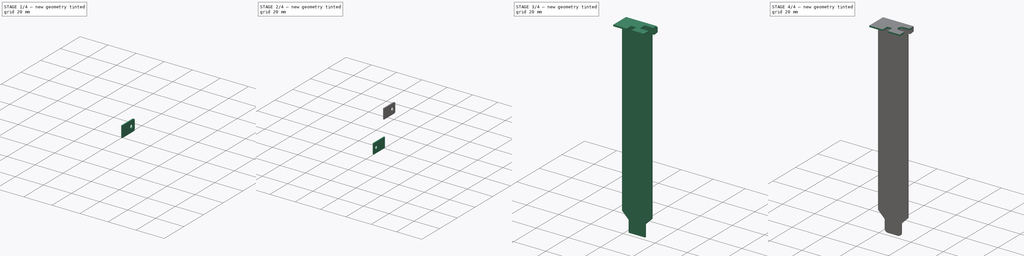
[diagram: build sequence overview — one tinted view per stage of 4, left to right]
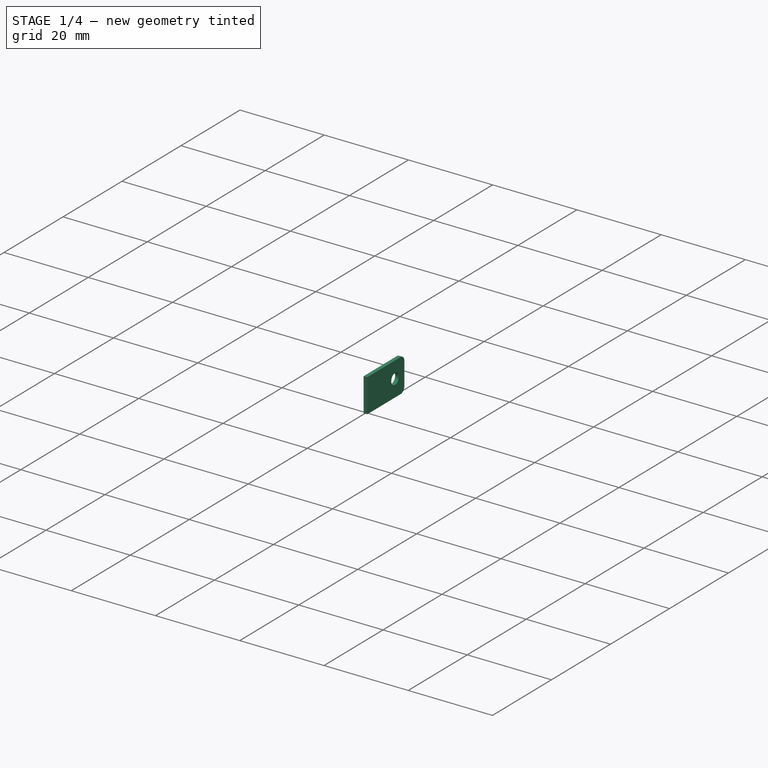
[diagram: stage 1 of 4 — iso view after this stage's code; geometry added in this stage tinted green]
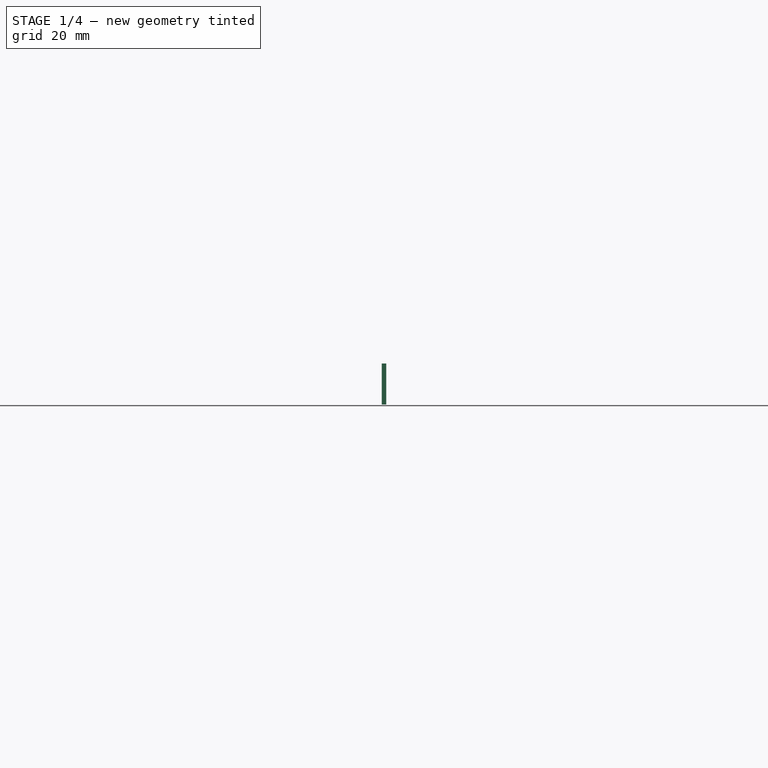
[diagram: stage 1 of 4 — front view after this stage's code; geometry added in this stage tinted green]
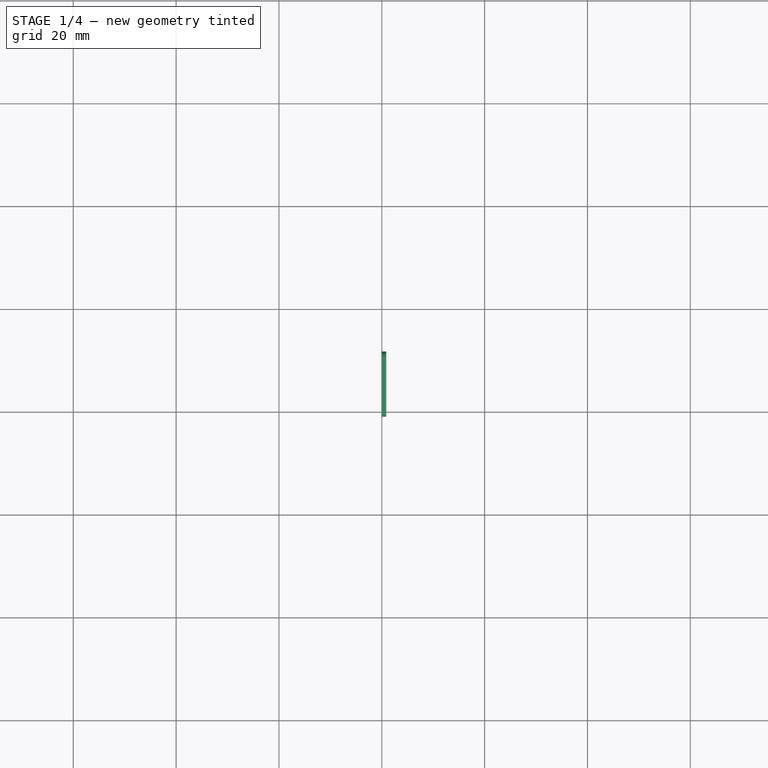
[diagram: stage 1 of 4 — top view after this stage's code; geometry added in this stage tinted green]
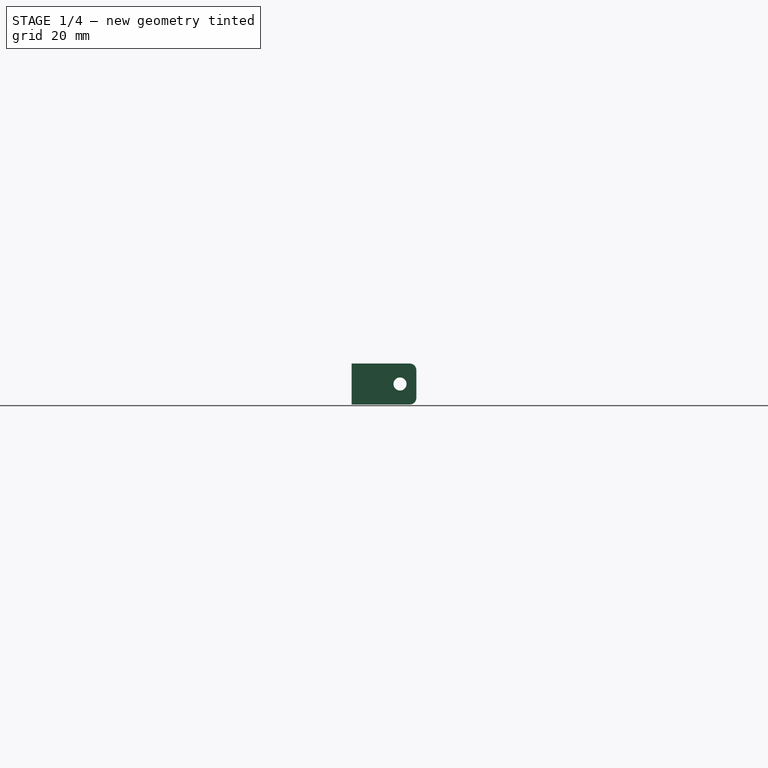
[diagram: stage 1 of 4 — right view after this stage's code; geometry added in this stage tinted green]
FCSTD DOCUMENT  (FreeCAD 1.0R1.0.1)
Label: IOBracket_Standard
License: All rights reserved
LicenseURL: http://en.wikipedia.org/wiki/All_rights_reserved
objects: Part::Fillet×4, Sketcher::SketchObject×2, PartDesign::Pad×2, PartDesign::Body×2, Part::MultiFuse×2, Part::Box×2, Part::Cylinder×2, Part::Cut×2
note: 24 computed .brp shape members not serialized (recipe doc carries the construction recipe); baked Part::Feature solids carry a one-line shape summary decoded from their .brp

FEATURE [Part::Box] Box001  label="Cube001"
  AttacherType = Attacher::AttachEngine3D
  Height = 7.95
  Length = 0.86
  Placement = pos=(0,-12.57,0) rot=(0,0,1;0rad)
  Width = 12.57
FEATURE [Part::Cylinder] Cylinder001
  Angle = 360
  AttacherType = Attacher::AttachEngine3D
  FirstAngle = 0
  Height = 10
  Placement = pos=(0,-9.4,3.975) rot=(0,1,0;1.5708rad)
  Radius = 1.27
  SecondAngle = 0
FEATURE [Part::Cut] Cut001
  Base = -> Box001
  Tool = -> Cylinder001
FEATURE [Part::Fillet] Fillet003
  Base = -> Cut001
  EdgeLinks = -> Cut001 [Edge6,Edge8]
  Edges = 2 edges r=1.27: [Edge6,Edge8]
  Placement = pos=(0.86,-0.86,20.53) rot=(0,0,1;3.14159rad)
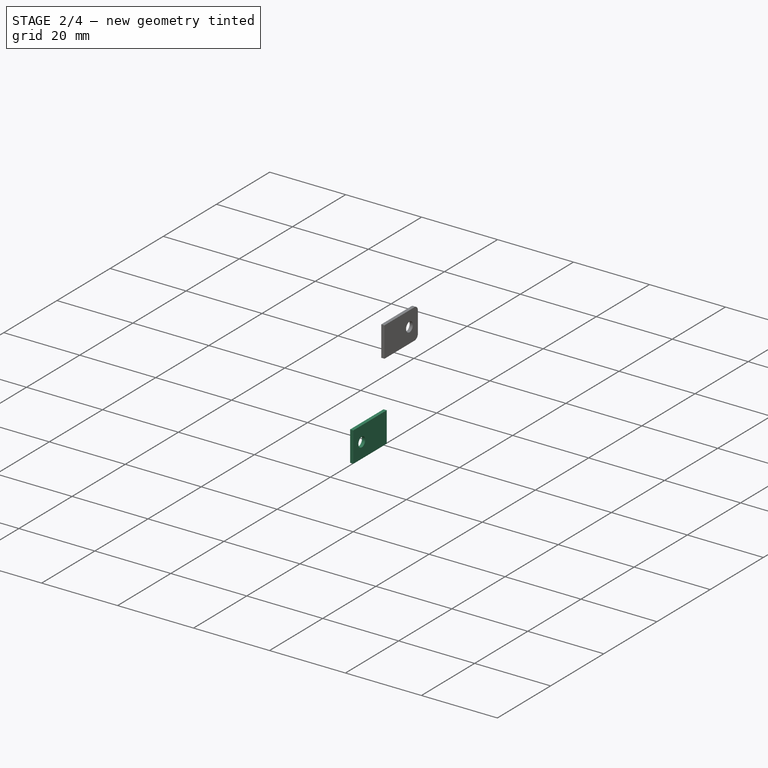
[diagram: stage 2 of 4 — iso view after this stage's code; geometry added in this stage tinted green]
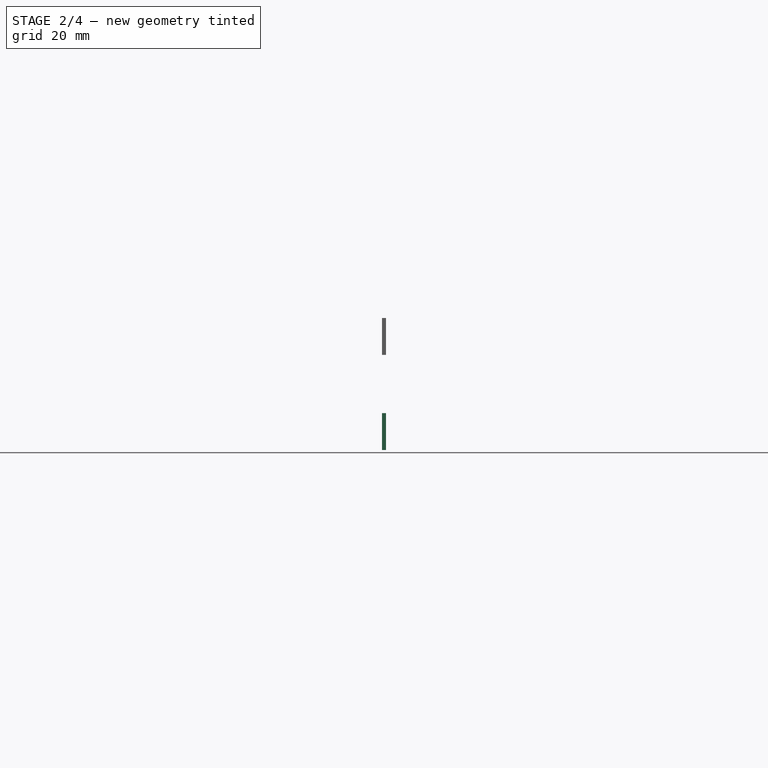
[diagram: stage 2 of 4 — front view after this stage's code; geometry added in this stage tinted green]
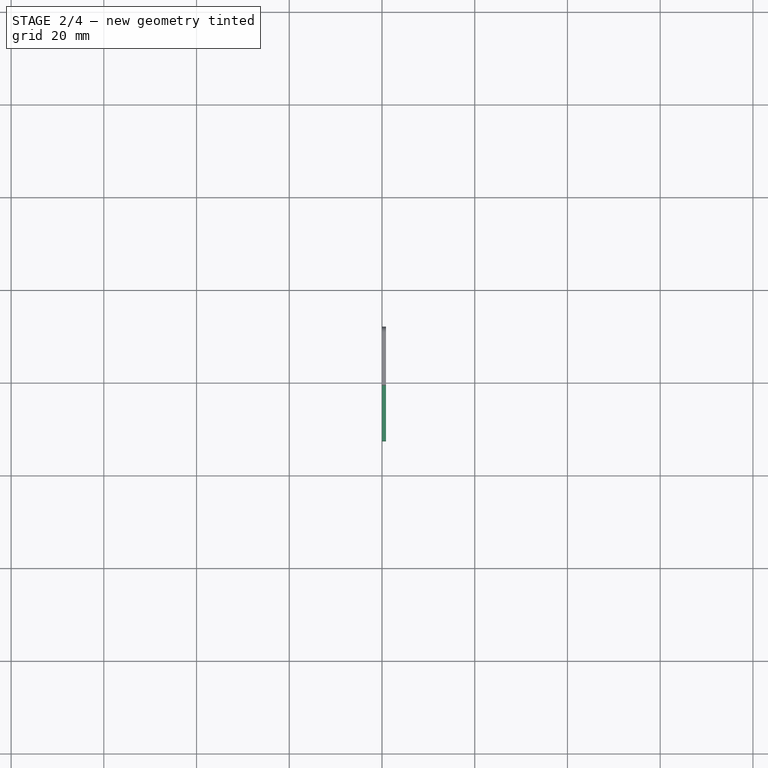
[diagram: stage 2 of 4 — top view after this stage's code; geometry added in this stage tinted green]
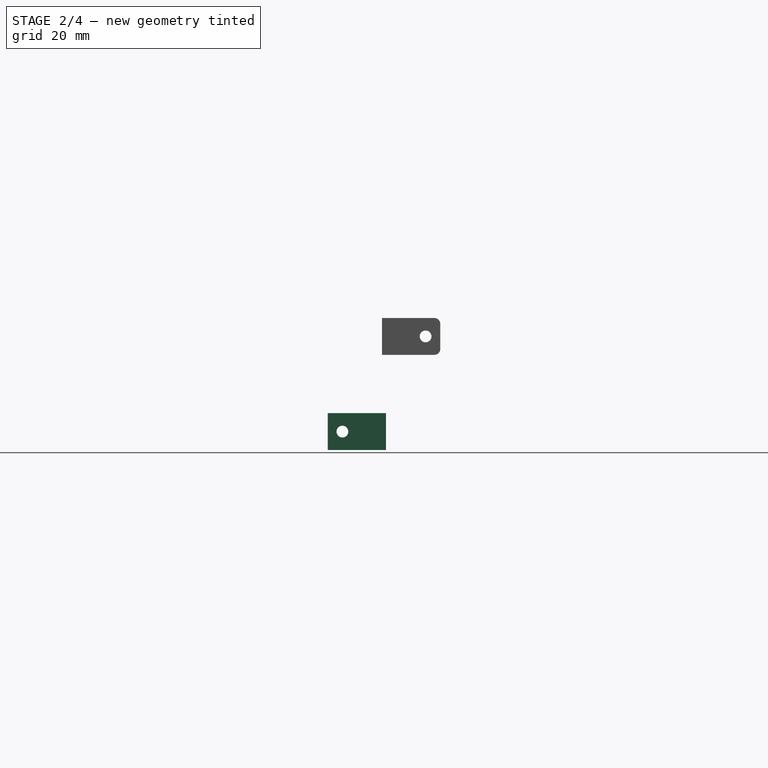
[diagram: stage 2 of 4 — right view after this stage's code; geometry added in this stage tinted green]
FEATURE [Part::Box] Box  label="Cube"
  AttacherType = Attacher::AttachEngine3D
  Height = 7.95
  Length = 0.86
  Placement = pos=(0,-12.57,0) rot=(0,0,1;0rad)
  Width = 12.57
FEATURE [Part::Cylinder] Cylinder
  Angle = 360
  AttacherType = Attacher::AttachEngine3D
  FirstAngle = 0
  Height = 10
  Placement = pos=(0,-9.4,3.975) rot=(0,1,0;1.5708rad)
  Radius = 1.27
  SecondAngle = 0
FEATURE [Part::Cut] Cut
  Base = -> Box
  Tool = -> Cylinder
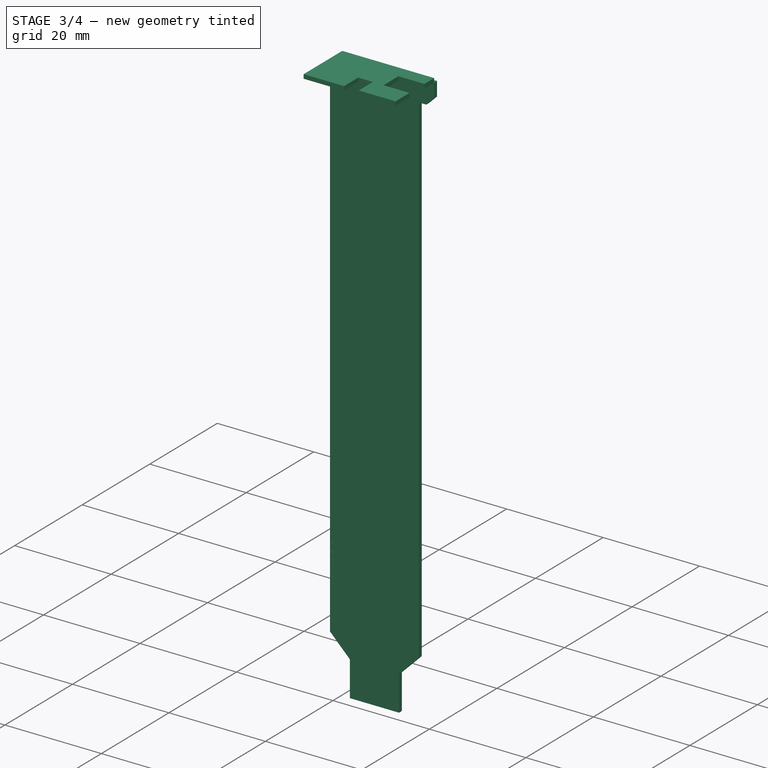
[diagram: stage 3 of 4 — iso view after this stage's code; geometry added in this stage tinted green]
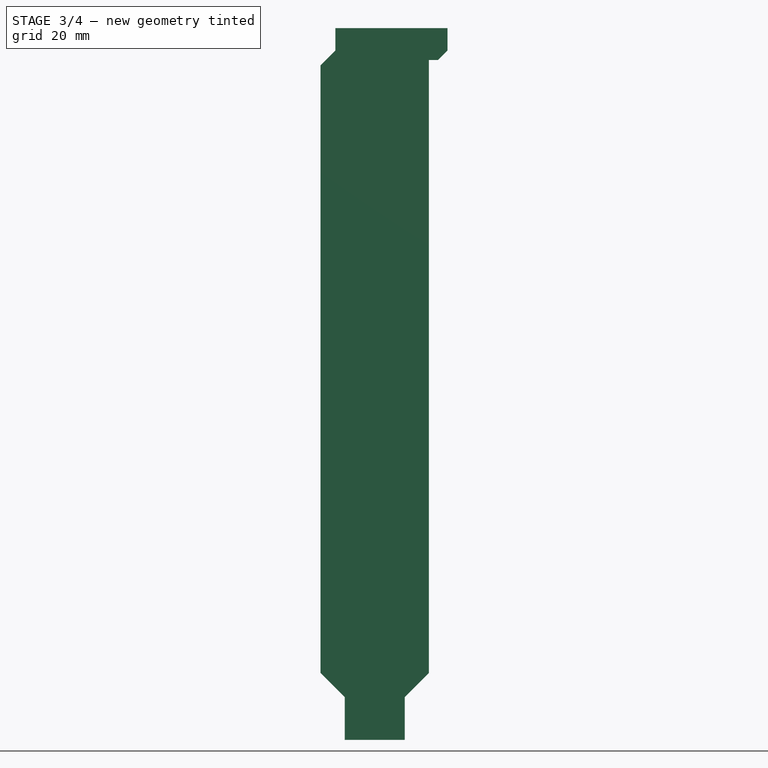
[diagram: stage 3 of 4 — front view after this stage's code; geometry added in this stage tinted green]
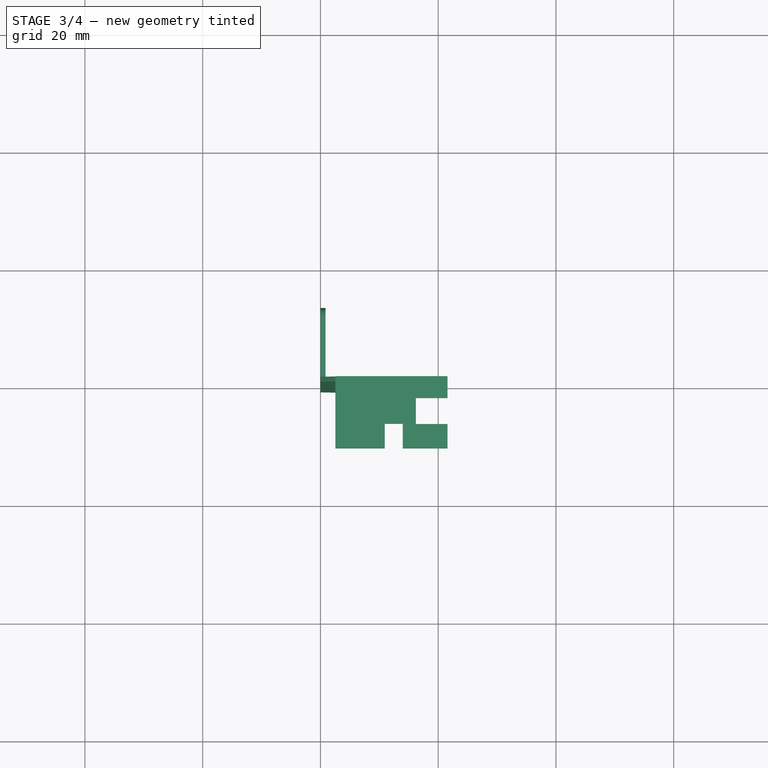
[diagram: stage 3 of 4 — top view after this stage's code; geometry added in this stage tinted green]
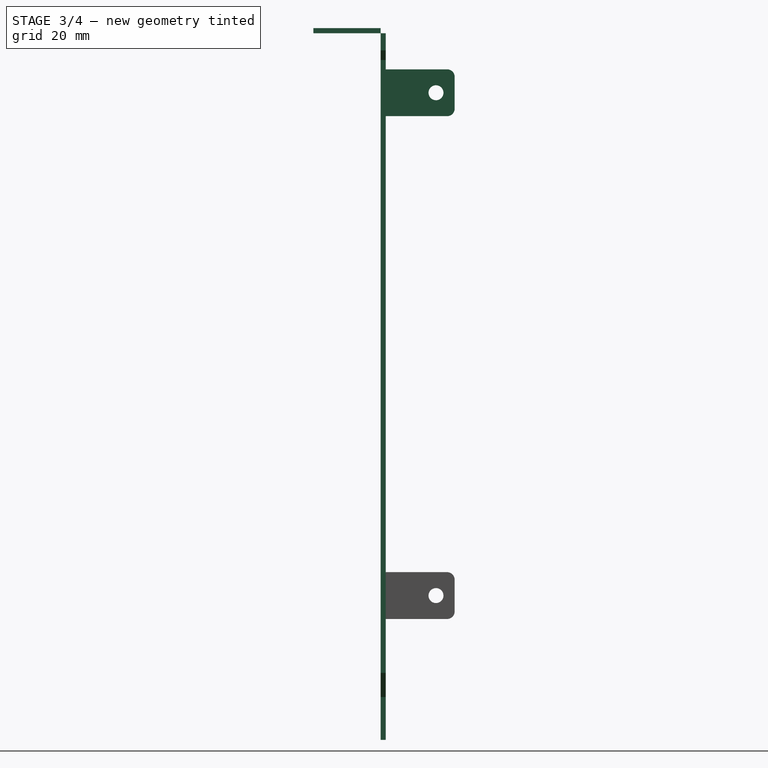
[diagram: stage 3 of 4 — right view after this stage's code; geometry added in this stage tinted green]
FEATURE [Sketcher::SketchObject] Sketch
  ArcFitTolerance = 1e-06
  AttachmentSupport = -> [XZ_Plane]
  FullyConstrained = true
  MakeInternals = false
  MapMode = 5
  Placement = pos=(0,0,0) rot=(1,0,0;1.5708rad)
  sketch-geometry (13):
    g0: LineSegment StartX=0 StartY=11.39 StartZ=0 EndX=4.12 EndY=7.27 EndZ=0
    g1: LineSegment StartX=4.12 StartY=7.27 StartZ=0 EndX=4.12 EndY=0 EndZ=0
    g2: LineSegment StartX=4.12 StartY=0 StartZ=0 EndX=14.31 EndY=0 EndZ=0
    g3: LineSegment StartX=14.31 StartY=0 StartZ=0 EndX=14.31 EndY=7.27 EndZ=0
    g4: LineSegment StartX=14.31 StartY=7.27 StartZ=0 EndX=18.42 EndY=11.38 EndZ=0
    g5: LineSegment StartX=18.42 StartY=11.38 StartZ=0 EndX=18.42 EndY=115.46 EndZ=0
    g6: LineSegment StartX=18.42 StartY=115.46 StartZ=0 EndX=19.95 EndY=115.46 EndZ=0
    g7: LineSegment StartX=19.95 StartY=115.46 StartZ=0 EndX=21.59 EndY=117.1 EndZ=0
    g8: LineSegment StartX=21.59 StartY=117.1 StartZ=0 EndX=21.59 EndY=120.02 EndZ=0
    g9: LineSegment StartX=21.59 StartY=120.02 StartZ=0 EndX=2.54 EndY=120.02 EndZ=0
    g10: LineSegment StartX=2.54 StartY=120.02 StartZ=0 EndX=2.54 EndY=117.1 EndZ=0
    g11: LineSegment StartX=2.54 StartY=117.1 StartZ=0 EndX=0 EndY=114.56 EndZ=0
    g12: LineSegment StartX=0 StartY=114.56 StartZ=0 EndX=0 EndY=11.39 EndZ=0
  constraints (39):
    c: PointOnObject(g0,g-2)
    c: Coincident(g0,g1)
    c: PointOnObject(g1,g-1)
    c: Vertical(g1)
    c: Coincident(g1,g2)
    c: PointOnObject(g2,g-1)
    c: Coincident(g2,g3)
    c: Vertical(g3)
    c: Coincident(g3,g4)
    c: Coincident(g4,g5)
    c: Vertical(g5)
    c: Coincident(g5,g6)
    c: Coincident(g6,g7)
    c: Coincident(g7,g8)
    c: Vertical(g8)
    c: Coincident(g8,g9)
    c: Horizontal(g9)
    c: Coincident(g9,g10)
    c: Vertical(g10)
    c: Coincident(g10,g11)
    c: PointOnObject(g11,g-2)
    c: Coincident(g11,g12)
    c: Coincident(g12,g0)
    c: DistanceX(g2,g4) = 4.11
    c: DistanceX(g1,g4) = 14.3
    c: DistanceX(g-1,g4) = 18.42
    c: Angle(g0,g1) = 2.35619
    c: Angle(g3,g4) = 2.35619
    c: DistanceX(g11,g10) = 2.54
    c: Angle(g12,g11) = 2.35619
    c: DistanceY(g10,g9) = 2.92
    c: Horizontal(g6)
    c: Angle(g7,g6) = 2.35619
    c: DistanceY(g3,g8) = 112.75
    c: DistanceY(g2,g8) = 120.02
    c: DistanceY(g0,g9) = 112.75
    c: DistanceX(g11,g8) = 21.59
    c: DistanceY(g6,g8) = 4.56
    c: DistanceY(g7,g8) = 2.92
FEATURE [PartDesign::Pad] Pad
  Direction = (0,-1,2e-16)
  Length = 0.86
  Length2 = 10
  Placement = pos=(0,0,0) rot=(1,0,0;1.5708rad)
  Profile = -> Sketch
  ReferenceAxis = -> Sketch [N_Axis]
  Suppressed = false
  Type = 0
FEATURE [PartDesign::Body] Body
  AllowCompound = false
  Group = -> [Sketch,Pad]
  Origin = -> Origin
  Tip = -> Pad
FEATURE [Sketcher::SketchObject] Sketch002
  ArcFitTolerance = 1e-06
  AttachmentSupport = -> [Pad,XZ_Plane001]
  FullyConstrained = true
  MakeInternals = false
  MapMode = 5
  Placement = pos=(0,2.66e-14,120.02) rot=(0,0,1;3.14159rad)
  sketch-geometry (12):
    g0: LineSegment StartX=-21.59 StartY=0.86 StartZ=0 EndX=-21.59 EndY=3.73 EndZ=0
    g1: LineSegment StartX=-21.59 StartY=3.73 StartZ=0 EndX=-16.21 EndY=3.73 EndZ=0
    g2: LineSegment StartX=-16.21 StartY=3.73 StartZ=0 EndX=-16.21 EndY=8.15 EndZ=0
    g3: LineSegment StartX=-16.21 StartY=8.15 StartZ=0 EndX=-21.59 EndY=8.15 EndZ=0
    g4: LineSegment StartX=-21.59 StartY=8.15 StartZ=0 EndX=-21.59 EndY=12.29 EndZ=0
    g5: LineSegment StartX=-21.59 StartY=12.29 StartZ=0 EndX=-13.97 EndY=12.29 EndZ=0
    g6: LineSegment StartX=-13.97 StartY=12.29 StartZ=0 EndX=-13.97 EndY=8.1 EndZ=0
    g7: LineSegment StartX=-13.97 StartY=8.1 StartZ=0 EndX=-10.92 EndY=8.1 EndZ=0
    g8: LineSegment StartX=-10.92 StartY=8.1 StartZ=0 EndX=-10.92 EndY=12.29 EndZ=0
    g9: LineSegment StartX=-10.92 StartY=12.29 StartZ=0 EndX=-2.54 EndY=12.29 EndZ=0
    g10: LineSegment StartX=-2.54 StartY=12.29 StartZ=0 EndX=-2.54 EndY=0.86 EndZ=0
    g11: LineSegment StartX=-2.54 StartY=0.86 StartZ=0 EndX=-21.59 EndY=0.86 EndZ=0
  constraints (36):
    c: Vertical(g0)
    c: Coincident(g0,g1)
    c: Horizontal(g1)
    c: Coincident(g1,g2)
    c: Vertical(g2)
    c: Coincident(g2,g3)
    c: Horizontal(g3)
    c: Coincident(g3,g4)
    c: Vertical(g4)
    c: Coincident(g4,g5)
    c: Horizontal(g5)
    c: Coincident(g5,g6)
    c: Coincident(g6,g7)
    c: Horizontal(g7)
    c: Coincident(g7,g8)
    c: Coincident(g8,g9)
    c: Horizontal(g9)
    c: Coincident(g9,g10)
    c: Vertical(g10)
    c: Coincident(g10,g11)
    c: Coincident(g11,g0)
    c: Horizontal(g11)
    c: DistanceY(g-1,g10) = 0.86
    c: DistanceY(g0,g0) = 2.87
    c: DistanceY(g0,g3) = 7.29
    c: DistanceY(g0,g4) = 11.43
    c: DistanceX(g9,g-1) = 2.54
    c: DistanceX(g8,g-1) = 10.92
    c: DistanceX(g5,g-1) = 13.97
    c: DistanceX(g2,g-1) = 16.21
    c: DistanceY(g10,g9) = 11.43
    c: DistanceY(g0,g6) = 7.24
    c: Vertical(g8)
    c: Vertical(g6)
    c: DistanceX(g4,g-1) = 21.59
    c: DistanceX(g0,g-1) = 21.59
FEATURE [PartDesign::Pad] Pad002
  Direction = (0,0,1)
  Length = 0.86
  Length2 = 10
  Placement = pos=(0,2.66e-14,120.02) rot=(0,0,1;3.14159rad)
  Profile = -> Sketch002
  ReferenceAxis = -> Sketch002 [N_Axis]
  Suppressed = false
  Type = 0
FEATURE [Part::Fillet] Fillet002
  Base = -> Cut
  EdgeLinks = -> Cut [Edge6,Edge8]
  Edges = 2 edges r=1.27: [Edge6,Edge8]
  Placement = pos=(0.86,-0.86,105.93) rot=(0,0,1;3.14159rad)
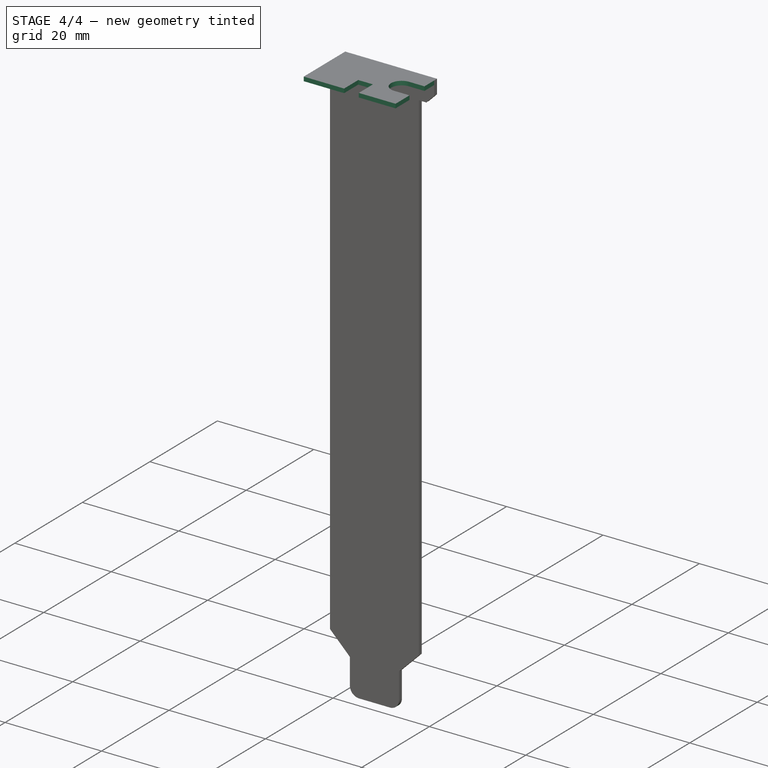
[diagram: stage 4 of 4 — iso view after this stage's code; geometry added in this stage tinted green]
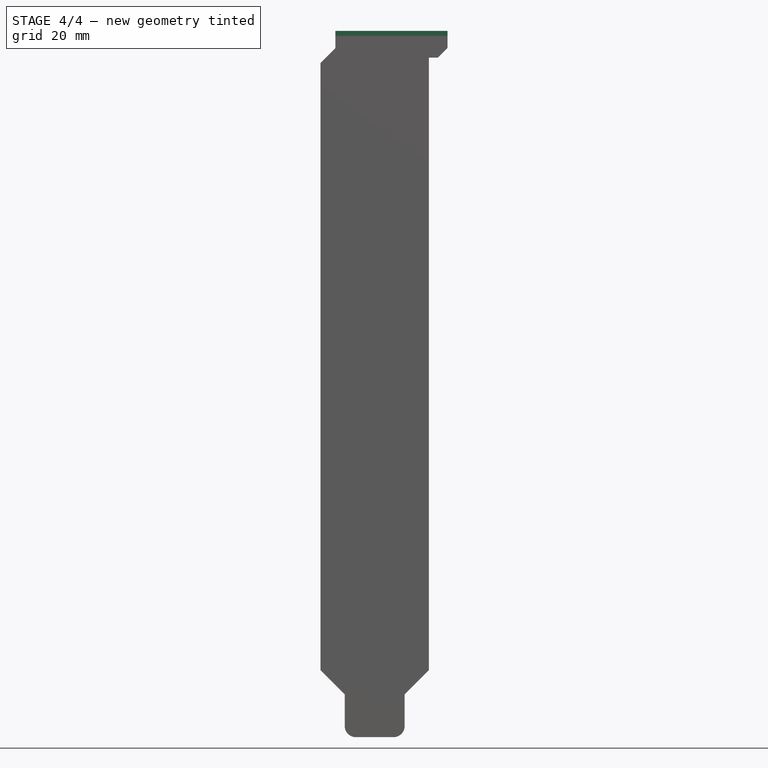
[diagram: stage 4 of 4 — front view after this stage's code; geometry added in this stage tinted green]
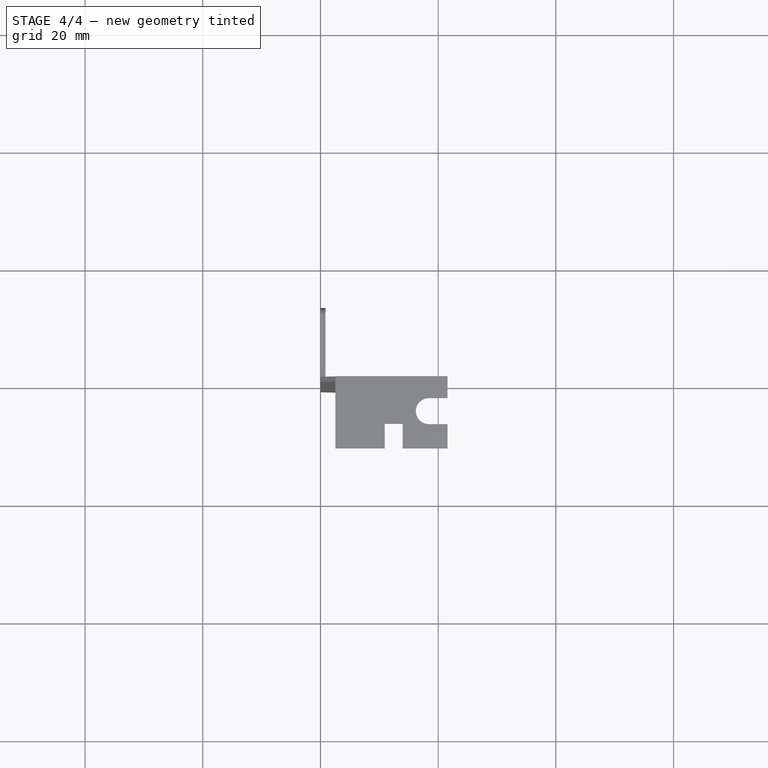
[diagram: stage 4 of 4 — top view after this stage's code; geometry added in this stage tinted green]
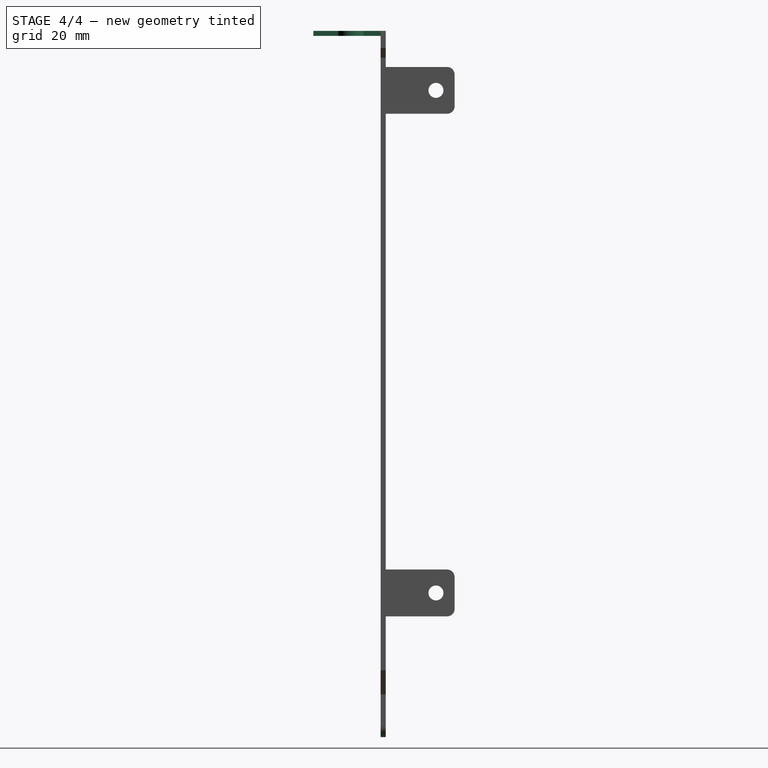
[diagram: stage 4 of 4 — right view after this stage's code; geometry added in this stage tinted green]
FEATURE [PartDesign::Body] Body001
  AllowCompound = false
  Group = -> [Sketch002,Pad002]
  Origin = -> Origin001
  Placement = pos=(0,0,-0.86) rot=(0,0,1;0rad)
  Tip = -> Pad002
FEATURE [Part::MultiFuse] Fusion
  Shapes = -> [Body001,Body]
FEATURE [Part::Fillet] Fillet
  Base = -> Fusion
  EdgeLinks = -> Fusion [Edge9,Edge57]
  Edges = 2 edges r=2.2: [Edge9,Edge57]
FEATURE [Part::Fillet] Fillet001
  Base = -> Fillet
  EdgeLinks = -> Fillet [Edge63,Edge65]
  Edges = 2 edges r=1.9: [Edge63,Edge65]
FEATURE [Part::MultiFuse] Fusion001  label="IOBracket_Standard"
  Shapes = -> [Fillet003,Fillet001,Fillet002]
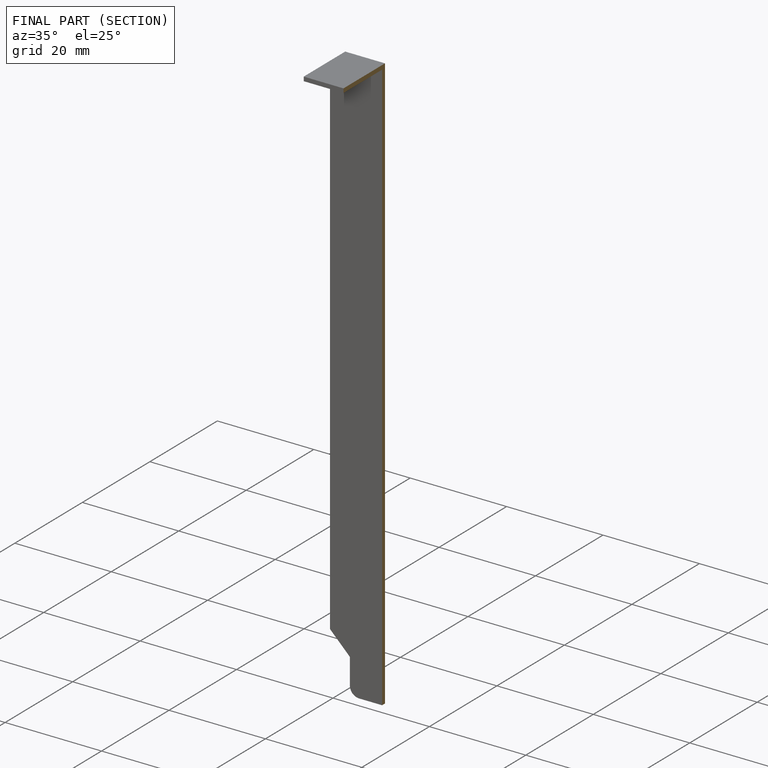
[diagram: finished part — half-section view (interior)]
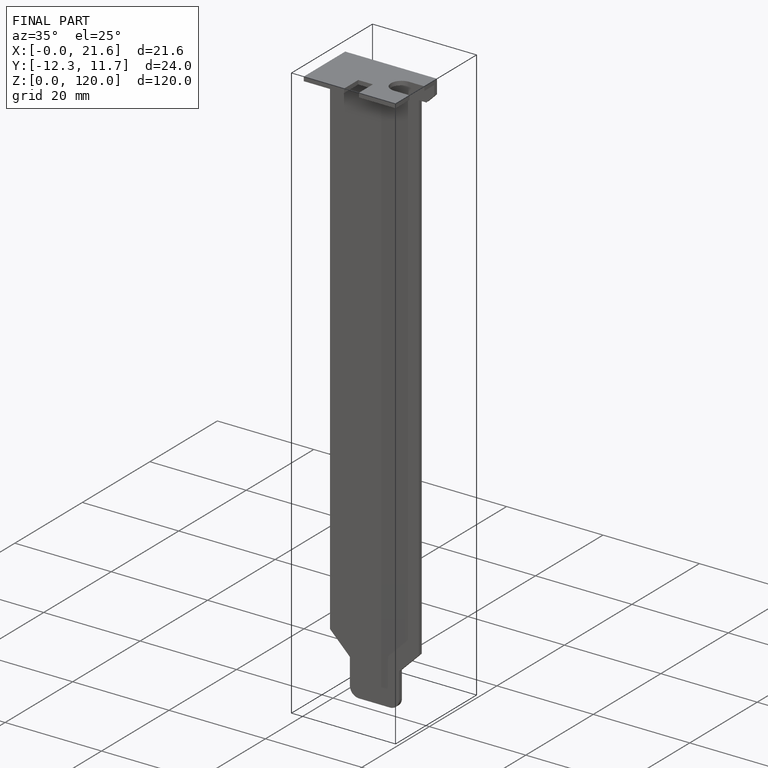
[diagram: finished part — iso view with bounding-box wireframe]
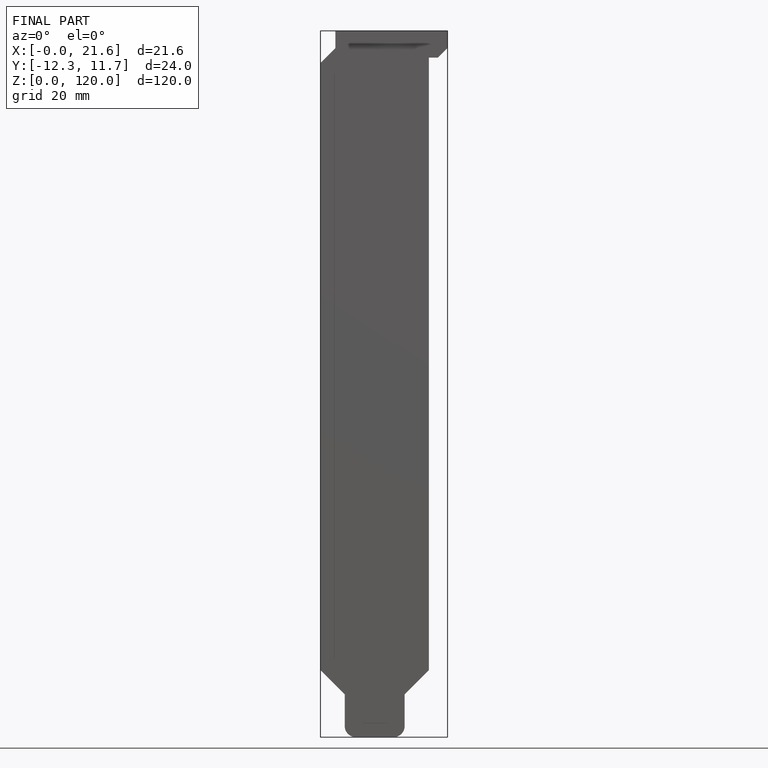
[diagram: finished part — front view with bounding-box wireframe]
